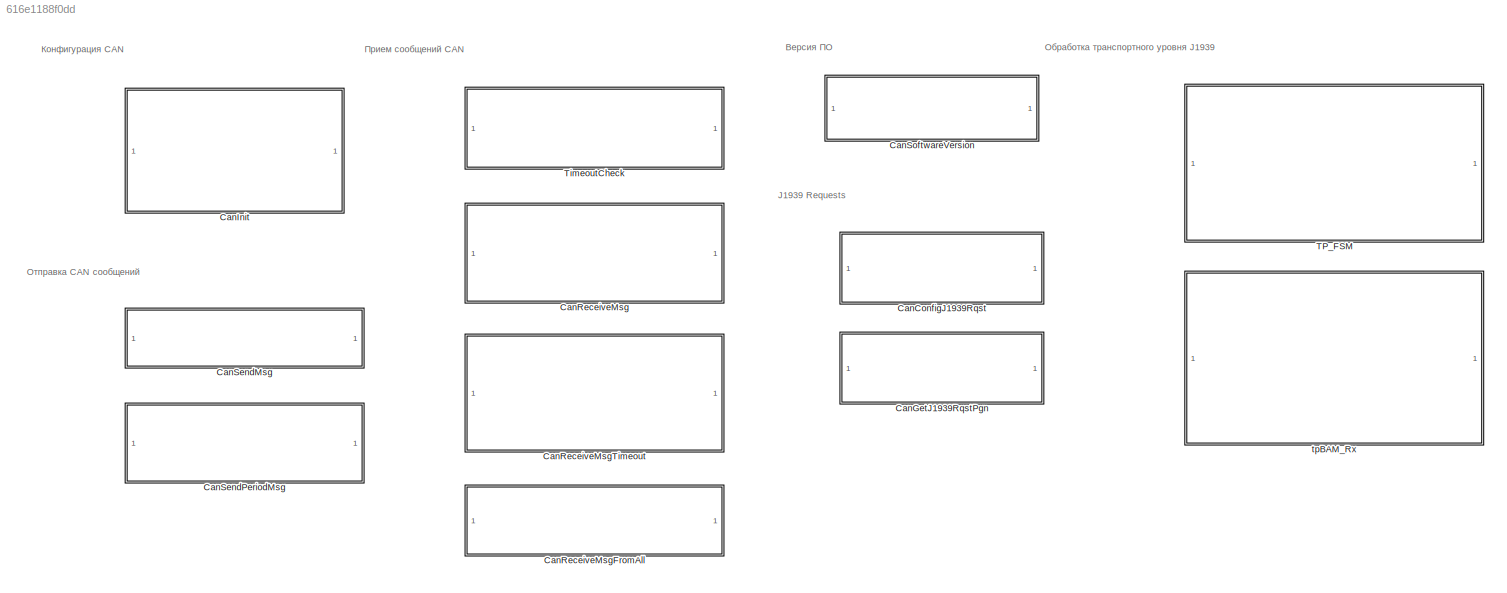
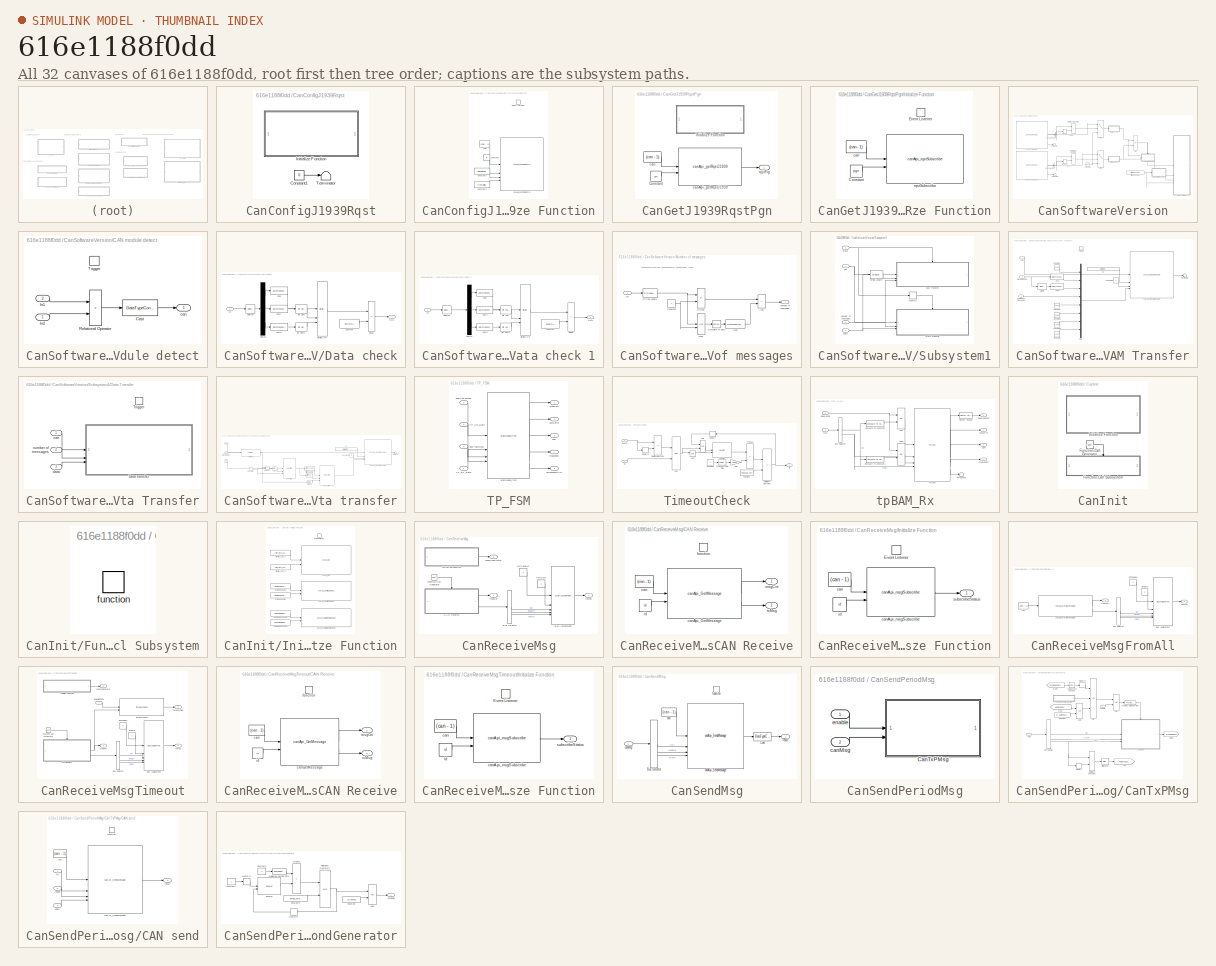
[diagram: thumbnail index - all 32 canvases of the model, root first then tree order]
MODEL slx_616e1188f0dd
KIND library
CONFIG AbsTol = auto
CONFIG EnableMultiTasking = off
CONFIG FixedStep = auto
CONFIG MaxStep = auto
CONFIG MinStep = auto
CONFIG RelTol = 1e-3
CONFIG SampleTimeConstraint = Unconstrained
CONFIG SolverName = VariableStepAuto
CONFIG StartTime = 0.0
CONFIG StopTime = 10.0
BLOCK [SubSystem] CanConfigJ1939Rqst
  TreatAsAtomicUnit = on
BLOCK [Constant] CanConfigJ1939Rqst/Constant1
  Value = 0
BLOCK [SubSystem] CanConfigJ1939Rqst/Initialize Function
  TreatAsAtomicUnit = on
BLOCK [Constant] CanConfigJ1939Rqst/Initialize Function/Constant
  OutDataTypeStr = uint32
  Value = id
BLOCK [Constant] CanConfigJ1939Rqst/Initialize Function/Constant1
  OutDataTypeStr = boolean
  Value = onlyPgnFlg
BLOCK [Constant] CanConfigJ1939Rqst/Initialize Function/Constant2
  OutDataTypeStr = boolean
  Value = fromAllFlg
BLOCK [EventListener] CanConfigJ1939Rqst/Initialize Function/Event Listener
  DisableCoverage = on
  EventName = reset
BLOCK [Constant] CanConfigJ1939Rqst/Initialize Function/can
  OutDataTypeStr = int32
  Value = (can - 1)
BLOCK [Reference] CanConfigJ1939Rqst/Initialize Function/canApi_confiqRqstId  REF=can_bswapi/canApi_confiqRqstId
  SourceBlock = can_bswapi/canApi_confiqRqstId
  SourceType = CCaller
BLOCK [Terminator] CanConfigJ1939Rqst/Terminator
BLOCK [SubSystem] CanGetJ1939RqstPgn
  TreatAsAtomicUnit = on
BLOCK [Constant] CanGetJ1939RqstPgn/Constant
  OutDataTypeStr = uint32
  Value = pgn
BLOCK [SubSystem] CanGetJ1939RqstPgn/Initialize Function
  TreatAsAtomicUnit = on
BLOCK [Constant] CanGetJ1939RqstPgn/Initialize Function/Constant
  OutDataTypeStr = uint32
  Value = pgn
BLOCK [EventListener] CanGetJ1939RqstPgn/Initialize Function/Event Listener
  DisableCoverage = on
  EventName = reset
BLOCK [Constant] CanGetJ1939RqstPgn/Initialize Function/can
  OutDataTypeStr = int32
  Value = (can - 1)
BLOCK [Reference] CanGetJ1939RqstPgn/Initialize Function/rqstSubscribe  REF=can_bswapi/canApi_rqstSubscribe
  SourceBlock = can_bswapi/canApi_rqstSubscribe
  SourceType = CCaller
BLOCK [Constant] CanGetJ1939RqstPgn/can
  OutDataTypeStr = int32
  Value = (can - 1)
BLOCK [Reference] CanGetJ1939RqstPgn/canApi_getRqstJ1939  REF=can_bswapi/canApi_getRqstJ1939
  SourceBlock = can_bswapi/canApi_getRqstJ1939
  SourceType = CCaller
BLOCK [Outport] CanGetJ1939RqstPgn/rqstFlg
  OutDataTypeStr = uint32
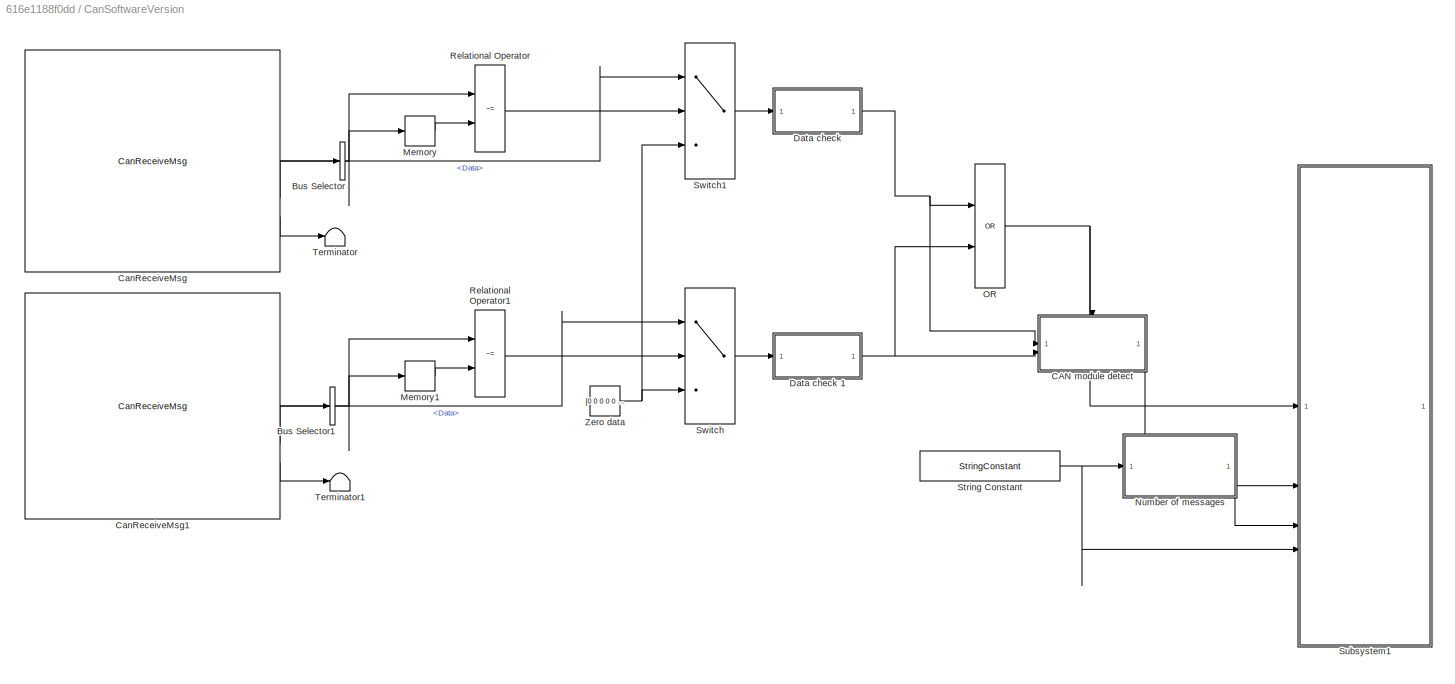
BLOCK [SubSystem] CanSoftwareVersion
  CopyFcn = null_str = """00.00.00""";\nread_str = get_param(gcb, 'firmware_date');\n\nif (read_str == null_str)\n    write_str = """" + string(datetime('now', 'Format', 'dd.MM.yy')) + """";\n    set_param(gcb, 'firmware_date', write_str);\nend\n\nclear null_str read_str write_str;
  LoadFcn = null_str = """00.00.00""";\nread_str = get_param(gcb, 'firmware_date');\n\nif (read_str == null_str)\n    write_str = """" + string(datetime('now', 'Format', 'dd.MM.yy')) + """";\n    set_param(gcb, 'firmware_date', write_str);\nend\n\nupdate = get_param(gcb, 'date_update');\n\nswitch (update)\n    case 'on'\n        write_str = """" + string(datetime('now', 'Format', 'dd.MM.yy')) + """";\n        set_param(gc...<+116ch>
  MoveFcn = null_str = """00.00.00""";\nread_str = get_param(gcb, 'firmware_date');\n\nif (read_str == null_str)\n    write_str = """" + string(datetime('now', 'Format', 'dd.MM.yy')) + """";\n    set_param(gcb, 'firmware_date', write_str);\nend\n\nclear null_str read_str write_str;
  TreatAsAtomicUnit = on
BLOCK [BusSelector] CanSoftwareVersion/Bus Selector
  OutputSignals = Data
BLOCK [BusSelector] CanSoftwareVersion/Bus Selector1
  OutputSignals = Data
BLOCK [SubSystem] CanSoftwareVersion/CAN module detect
  TreatAsAtomicUnit = on
BLOCK [DataTypeConversion] CanSoftwareVersion/CAN module detect/Cast
  OutDataTypeStr = int32
  RndMeth = Simplest
  SaturateOnIntegerOverflow = off
BLOCK [Inport] CanSoftwareVersion/CAN module detect/In1
  Port = 2
BLOCK [Inport] CanSoftwareVersion/CAN module detect/In2
BLOCK [RelationalOperator] CanSoftwareVersion/CAN module detect/Relational Operator
  InputSameDT = off
  Operator = >
  OutDataTypeStr = boolean
  RndMeth = Simplest
  ZeroCross = off
BLOCK [TriggerPort] CanSoftwareVersion/CAN module detect/Trigger
  StatesWhenEnabling = held
  VariantControl = (inherit)
BLOCK [Outport] CanSoftwareVersion/CAN module detect/can
BLOCK [SubSystem] CanSoftwareVersion/Data check
BLOCK [SubSystem] CanSoftwareVersion/Data check 1
BLOCK [Reference] CanSoftwareVersion/Data check 1/Bit Shift  REF=hdlsllib/Logic and Bit
Operations/Bit Shift
  SourceBlock = hdlsllib/Logic and Bit\nOperations/Bit Shift
  SourceType = Bit Shift
BLOCK [Reference] CanSoftwareVersion/Data check 1/Bit Shift1  REF=hdlsllib/Logic and Bit
Operations/Bit Shift
  SourceBlock = hdlsllib/Logic and Bit\nOperations/Bit Shift
  SourceType = Bit Shift
BLOCK [Reference] CanSoftwareVersion/Data check 1/Bitwise OR  REF=simulink/Logic and Bit
Operations/Bitwise
Operator
  LibrarySourceBlock = simulink/Quick Insert/Logic and Bit\nOperations/Bitwise OR
  SourceBlock = simulink/Logic and Bit\nOperations/Bitwise\nOperator
  SourceType = Bitwise Operator
BLOCK [DataTypeConversion] CanSoftwareVersion/Data check 1/Cast
  ConvertRealWorld = Stored Integer (SI)
  OutDataTypeStr = uint32
  RndMeth = Simplest
  SaturateOnIntegerOverflow = off
BLOCK [DataTypeConversion] CanSoftwareVersion/Data check 1/Cast1
  ConvertRealWorld = Stored Integer (SI)
  OutDataTypeStr = uint32
  RndMeth = Simplest
  SaturateOnIntegerOverflow = off
BLOCK [DataTypeConversion] CanSoftwareVersion/Data check 1/Cast2
  ConvertRealWorld = Stored Integer (SI)
  OutDataTypeStr = uint32
  RndMeth = Simplest
  SaturateOnIntegerOverflow = off
BLOCK [Constant] CanSoftwareVersion/Data check 1/Constant
  OutDataTypeStr = uint32
  Value = 0xFEDA
BLOCK [Demux] CanSoftwareVersion/Data check 1/Demux
  Outputs = 3
BLOCK [RelationalOperator] CanSoftwareVersion/Data check 1/Equal
  InputSameDT = off
  Operator = ==
  OutDataTypeStr = boolean
  RndMeth = Simplest
BLOCK [Inport] CanSoftwareVersion/Data check 1/In1
BLOCK [Outport] CanSoftwareVersion/Data check 1/Out1
BLOCK [Selector] CanSoftwareVersion/Data check 1/Selector
  IndexMode = Zero-based
  IndexOptions = Index vector (dialog)
  Indices = [0 1 2]
  InputPortWidth = 8
  OutputSizes = 1
BLOCK [Reference] CanSoftwareVersion/Data check/Bit Shift  REF=hdlsllib/Logic and Bit
Operations/Bit Shift
  SourceBlock = hdlsllib/Logic and Bit\nOperations/Bit Shift
  SourceType = Bit Shift
BLOCK [Reference] CanSoftwareVersion/Data check/Bit Shift1  REF=hdlsllib/Logic and Bit
Operations/Bit Shift
  SourceBlock = hdlsllib/Logic and Bit\nOperations/Bit Shift
  SourceType = Bit Shift
BLOCK [Reference] CanSoftwareVersion/Data check/Bitwise OR  REF=simulink/Logic and Bit
Operations/Bitwise
Operator
  LibrarySourceBlock = simulink/Quick Insert/Logic and Bit\nOperations/Bitwise OR
  SourceBlock = simulink/Logic and Bit\nOperations/Bitwise\nOperator
  SourceType = Bitwise Operator
BLOCK [DataTypeConversion] CanSoftwareVersion/Data check/Cast
  ConvertRealWorld = Stored Integer (SI)
  OutDataTypeStr = uint32
  RndMeth = Simplest
  SaturateOnIntegerOverflow = off
BLOCK [DataTypeConversion] CanSoftwareVersion/Data check/Cast1
  ConvertRealWorld = Stored Integer (SI)
  OutDataTypeStr = uint32
  RndMeth = Simplest
  SaturateOnIntegerOverflow = off
BLOCK [DataTypeConversion] CanSoftwareVersion/Data check/Cast2
  ConvertRealWorld = Stored Integer (SI)
  OutDataTypeStr = uint32
  RndMeth = Simplest
  SaturateOnIntegerOverflow = off
BLOCK [Constant] CanSoftwareVersion/Data check/Constant
  OutDataTypeStr = uint32
  Value = 0xFEDA
BLOCK [Demux] CanSoftwareVersion/Data check/Demux
  Outputs = 3
BLOCK [RelationalOperator] CanSoftwareVersion/Data check/Equal
  InputSameDT = off
  Operator = ==
  OutDataTypeStr = boolean
  RndMeth = Simplest
BLOCK [Inport] CanSoftwareVersion/Data check/In1
BLOCK [Outport] CanSoftwareVersion/Data check/Out1
BLOCK [Selector] CanSoftwareVersion/Data check/Selector
  IndexMode = Zero-based
  IndexOptions = Index vector (dialog)
  Indices = [0 1 2]
  InputPortWidth = 8
  OutputSizes = 1
BLOCK [Memory] CanSoftwareVersion/Memory
BLOCK [Memory] CanSoftwareVersion/Memory1
BLOCK [SubSystem] CanSoftwareVersion/Number of messages
BLOCK [Sum] CanSoftwareVersion/Number of messages/Add
  IconShape = rectangular
  OutDataTypeStr = uint8
  RndMeth = Simplest
BLOCK [DataTypeConversion] CanSoftwareVersion/Number of messages/Cast
  OutDataTypeStr = uint8
  RndMeth = Simplest
  SaturateOnIntegerOverflow = off
BLOCK [Reference] CanSoftwareVersion/Number of messages/Compare To Zero  REF=simulink/Logic and Bit
Operations/Compare
To Zero
  SourceBlock = simulink/Logic and Bit\nOperations/Compare\nTo Zero
  SourceType = Compare To Zero
BLOCK [Constant] CanSoftwareVersion/Number of messages/Constant
  OutDataTypeStr = uint8
  Value = 7
BLOCK [Product] CanSoftwareVersion/Number of messages/Divide
  Inputs = */
  OutDataTypeStr = uint8
  RndMeth = Simplest
BLOCK [Inport] CanSoftwareVersion/Number of messages/In1
BLOCK [Math] CanSoftwareVersion/Number of messages/Mod
  Operator = mod
BLOCK [StringLength] CanSoftwareVersion/Number of messages/String Length
  OutDataTypeStr = uint8
BLOCK [Outport] CanSoftwareVersion/Number of messages/number of messages
BLOCK [Logic] CanSoftwareVersion/OR
  AllPortsSameDT = off
  Operator = OR
  OutDataTypeStr = boolean
BLOCK [RelationalOperator] CanSoftwareVersion/Relational Operator
  InputSameDT = off
  Operator = ~=
  OutDataTypeStr = boolean
  RndMeth = Simplest
BLOCK [RelationalOperator] CanSoftwareVersion/Relational Operator1
  InputSameDT = off
  Operator = ~=
  OutDataTypeStr = boolean
  RndMeth = Simplest
BLOCK [StringConstant] CanSoftwareVersion/String Constant
  String = software_version
BLOCK [SubSystem] CanSoftwareVersion/Subsystem1
BLOCK [SubSystem] CanSoftwareVersion/Subsystem1/BAM Transfer
  TreatAsAtomicUnit = on
BLOCK [Reference] CanSoftwareVersion/Subsystem1/BAM Transfer/Bit Shift  REF=hdlsllib/Logic and Bit
Operations/Bit Shift
  SourceBlock = hdlsllib/Logic and Bit\nOperations/Bit Shift
  SourceType = Bit Shift
BLOCK [DataTypeConversion] CanSoftwareVersion/Subsystem1/BAM Transfer/Cast
  OutDataTypeStr = uint8
  RndMeth = Simplest
  SaturateOnIntegerOverflow = off
BLOCK [DataTypeConversion] CanSoftwareVersion/Subsystem1/BAM Transfer/Cast1
  OutDataTypeStr = uint8
  RndMeth = Simplest
  SaturateOnIntegerOverflow = off
BLOCK [Constant] CanSoftwareVersion/Subsystem1/BAM Transfer/Constant
  OutDataTypeStr = uint8
  Value = 0x20
BLOCK [Constant] CanSoftwareVersion/Subsystem1/BAM Transfer/Constant1
  OutDataTypeStr = uint8
  Value = 0xFF
BLOCK [Constant] CanSoftwareVersion/Subsystem1/BAM Transfer/Constant2
  OutDataTypeStr = uint8
  Value = 0xDA
BLOCK [Constant] CanSoftwareVersion/Subsystem1/BAM Transfer/Constant3
  OutDataTypeStr = uint8
  Value = 0xFE
BLOCK [Constant] CanSoftwareVersion/Subsystem1/BAM Transfer/Constant4
  OutDataTypeStr = uint8
  Value = 0x00
BLOCK [Constant] CanSoftwareVersion/Subsystem1/BAM Transfer/Constant8
  OutDataTypeStr = uint8
  Value = 8
BLOCK [Constant] CanSoftwareVersion/Subsystem1/BAM Transfer/ID
  OutDataTypeStr = uint32
  Value = bitor(uint32(0x1CECFF00), uint32(sa))
BLOCK [Mux] CanSoftwareVersion/Subsystem1/BAM Transfer/Mux
  DisplayOption = bar
  Inputs = 8
BLOCK [Terminator] CanSoftwareVersion/Subsystem1/BAM Transfer/Terminator
BLOCK [TriggerPort] CanSoftwareVersion/Subsystem1/BAM Transfer/Trigger
  StatesWhenEnabling = held
  VariantControl = (inherit)
BLOCK [Inport] CanSoftwareVersion/Subsystem1/BAM Transfer/can
BLOCK [Reference] CanSoftwareVersion/Subsystem1/BAM Transfer/canApi_SendMessage  REF=can_bswapi/canApi_SendMessage
  SourceBlock = can_bswapi/canApi_SendMessage
  SourceType = CCaller
BLOCK [Inport] CanSoftwareVersion/Subsystem1/BAM Transfer/message size
  Port = 2
BLOCK [Inport] CanSoftwareVersion/Subsystem1/BAM Transfer/number of messages
  Port = 3
BLOCK [SubSystem] CanSoftwareVersion/Subsystem1/Data Transfer
  TreatAsAtomicUnit = on
BLOCK [SubSystem] CanSoftwareVersion/Subsystem1/Data Transfer/Data transfer
  TreatAsAtomicUnit = on
BLOCK [Bias] CanSoftwareVersion/Subsystem1/Data Transfer/Data transfer/Bias
  Bias = 1
  SaturateOnIntegerOverflow = off
BLOCK [Bias] CanSoftwareVersion/Subsystem1/Data Transfer/Data transfer/Bias1
  Bias = 1
  SaturateOnIntegerOverflow = off
BLOCK [CFunction] CanSoftwareVersion/Subsystem1/Data Transfer/Data transfer/C Function
  OutputCode = if(len < 7)\n{\n    data_out[0] = message_number;\n    for(int i = 0; i < 7; ++i)\n    {\n        if(i < len)\n            data_out[i + 1] = data_in[i];\n        else\n            data_out[i + 1] = 0xFF;\n    }    \n}\nelse\n{\n    data_out[0] = message_number;\n    for(int i = 0; i < 7; ++i)\n    {\n        data_out[i + 1] = data_in[i];    \n    }   \n}
BLOCK [Constant] CanSoftwareVersion/Subsystem1/Data Transfer/Data transfer/Constant
  OutDataTypeStr = uint8
  Value = 7
BLOCK [Constant] CanSoftwareVersion/Subsystem1/Data Transfer/Data transfer/Constant8
  OutDataTypeStr = uint8
  Value = 8
BLOCK [ForIterator] CanSoftwareVersion/Subsystem1/Data Transfer/Data transfer/For Iterator
  IndexMode = Zero-based
  IterationSource = external
  IterationVariableDataType = uint8
BLOCK [Constant] CanSoftwareVersion/Subsystem1/Data Transfer/Data transfer/ID
  OutDataTypeStr = uint32
  Value = bitor(uint32(0x1CEBFF00), uint32(sa))
BLOCK [Product] CanSoftwareVersion/Subsystem1/Data Transfer/Data transfer/Product
  OutDataTypeStr = uint8
  RndMeth = Simplest
BLOCK [StringLength] CanSoftwareVersion/Subsystem1/Data Transfer/Data transfer/String Length
  OutDataTypeStr = uint32
BLOCK [StringToASCII] CanSoftwareVersion/Subsystem1/Data Transfer/Data transfer/String to ASCII
  OutputVectorSize = 7
BLOCK [Substring] CanSoftwareVersion/Subsystem1/Data Transfer/Data transfer/Substring
BLOCK [Terminator] CanSoftwareVersion/Subsystem1/Data Transfer/Data transfer/Terminator
BLOCK [Inport] CanSoftwareVersion/Subsystem1/Data Transfer/Data transfer/can
BLOCK [Reference] CanSoftwareVersion/Subsystem1/Data Transfer/Data transfer/canApi_SendMessage  REF=can_bswapi/canApi_SendMessage
  SourceBlock = can_bswapi/canApi_SendMessage
  SourceType = CCaller
BLOCK [Inport] CanSoftwareVersion/Subsystem1/Data Transfer/Data transfer/data
  Port = 3
BLOCK [Inport] CanSoftwareVersion/Subsystem1/Data Transfer/Data transfer/number of messages
  Port = 2
BLOCK [TriggerPort] CanSoftwareVersion/Subsystem1/Data Transfer/Trigger
  StatesWhenEnabling = held
  VariantControl = (inherit)
BLOCK [Inport] CanSoftwareVersion/Subsystem1/Data Transfer/can
BLOCK [Inport] CanSoftwareVersion/Subsystem1/Data Transfer/data
  Port = 3
BLOCK [Inport] CanSoftwareVersion/Subsystem1/Data Transfer/number of messages
  Port = 2
BLOCK [Memory] CanSoftwareVersion/Subsystem1/Memory
BLOCK [StringLength] CanSoftwareVersion/Subsystem1/String Length
  OutDataTypeStr = uint8
BLOCK [Inport] CanSoftwareVersion/Subsystem1/can
  Port = 2
BLOCK [Inport] CanSoftwareVersion/Subsystem1/data
  Port = 4
BLOCK [Inport] CanSoftwareVersion/Subsystem1/number of messages
  Port = 3
BLOCK [Inport] CanSoftwareVersion/Subsystem1/state
BLOCK [Switch] CanSoftwareVersion/Switch
  Criteria = u2 ~= 0
  InputSameDT = off
  RndMeth = Simplest
  SaturateOnIntegerOverflow = off
BLOCK [Switch] CanSoftwareVersion/Switch1
  Criteria = u2 ~= 0
  InputSameDT = off
  RndMeth = Simplest
  SaturateOnIntegerOverflow = off
BLOCK [Terminator] CanSoftwareVersion/Terminator
BLOCK [Terminator] CanSoftwareVersion/Terminator1
BLOCK [Constant] CanSoftwareVersion/Zero data
  OutDataTypeStr = uint8
  Value = [0 0 0 0 0 0 0 0]
BLOCK [Reference] CanSoftwareVersion/СanReceiveMsg  REF=$bdroot/СanReceiveMsg
  SourceBlock = $bdroot/СanReceiveMsg
  SourceType = Прием Can-сообщения по "подписке"
BLOCK [Reference] CanSoftwareVersion/СanReceiveMsg1  REF=$bdroot/СanReceiveMsg
  SourceBlock = $bdroot/СanReceiveMsg
  SourceType = Прием Can-сообщения по "подписке"
BLOCK [SubSystem] TP_FSM
BLOCK [Reference] TP_FSM/BamJ1939_Fsm  REF=bamFsm/BamJ1939_Fsm
  SourceBlock = bamFsm/BamJ1939_Fsm
  SourceType = SubSystem
BLOCK [Inport] TP_FSM/TP_CM_Data
  Port = 2
BLOCK [Inport] TP_FSM/TP_DT_Data
  Port = 4
BLOCK [Outport] TP_FSM/dtMsgWaitFlg
  OutDataTypeStr = boolean
  Port = 5
BLOCK [Outport] TP_FSM/msgCntr
BLOCK [Outport] TP_FSM/msgLengh
  Port = 4
BLOCK [Inport] TP_FSM/newTpCmMsg
BLOCK [Inport] TP_FSM/newTpDtMsg
  Port = 3
BLOCK [Outport] TP_FSM/outBuffer
  Port = 2
BLOCK [Outport] TP_FSM/pgn
  Port = 3
BLOCK [SubSystem] TimeoutCheck
BLOCK [Logic] TimeoutCheck/AND
  AllPortsSameDT = off
  OutDataTypeStr = boolean
BLOCK [Constant] TimeoutCheck/Constant
  OutDataTypeStr = uint32
  Value = timeout_ms
BLOCK [Constant] TimeoutCheck/Constant2
  OutDataTypeStr = uint32
BLOCK [Reference] TimeoutCheck/Counter  REF=dspswit3/Counter
  SourceBlock = dspswit3/Counter
  SourceType = Counter
BLOCK [Gain] TimeoutCheck/Gain
  Gain = 1000
  OutDataTypeStr = uint32
  ParamDataTypeStr = single
  RndMeth = Simplest
BLOCK [Memory] TimeoutCheck/Memory
  InheritSampleTime = on
  NameLocation = top
BLOCK [Memory] TimeoutCheck/Memory1
  InheritSampleTime = on
BLOCK [Logic] TimeoutCheck/NOT
  AllPortsSameDT = off
  IconShape = distinctive
  Operator = NOT
  OutDataTypeStr = boolean
BLOCK [Product] TimeoutCheck/Product
  OutDataTypeStr = uint32
  RndMeth = Simplest
BLOCK [RelationalOperator] TimeoutCheck/Relational Operator
  InputSameDT = off
  Operator = ==
  OutDataTypeStr = boolean
  RndMeth = Simplest
  ZeroCross = off
BLOCK [RelationalOperator] TimeoutCheck/Relational Operator1
  InputSameDT = off
  Operator = >
  OutDataTypeStr = boolean
  RndMeth = Simplest
  ZeroCross = off
BLOCK [SampleTimeMath] TimeoutCheck/Weighted Sample Time
  OutDataTypeStr = single
  TsampMathOp = Ts Only
  weightValue = uint32(1)
BLOCK [Logic] TimeoutCheck/XOR
  AllPortsSameDT = off
  Operator = XOR
  OutDataTypeStr = boolean
BLOCK [Inport] TimeoutCheck/en
BLOCK [Outport] TimeoutCheck/flg
BLOCK [Inport] TimeoutCheck/msgCnt
  Port = 2
BLOCK [SubSystem] tpBAM_Rx
BLOCK [Logic] tpBAM_Rx/AND
  AllPortsSameDT = off
  OutDataTypeStr = boolean
BLOCK [Logic] tpBAM_Rx/AND1
  AllPortsSameDT = off
  OutDataTypeStr = boolean
BLOCK [BusSelector] tpBAM_Rx/Bus Selector
  OutputSignals = ID,Data
BLOCK [Reference] tpBAM_Rx/Compare To Constant  REF=simulink/Logic and Bit
Operations/Compare
To Constant
  SourceBlock = simulink/Logic and Bit\nOperations/Compare\nTo Constant
  SourceType = Compare To Constant
BLOCK [Reference] tpBAM_Rx/Compare To Constant1  REF=simulink/Logic and Bit
Operations/Compare
To Constant
  SourceBlock = simulink/Logic and Bit\nOperations/Compare\nTo Constant
  SourceType = Compare To Constant
BLOCK [Reference] tpBAM_Rx/Detect Change  REF=simulink/Logic and Bit
Operations/Detect
Change
  SourceBlock = simulink/Logic and Bit\nOperations/Detect\nChange
  SourceType = Detect Change
BLOCK [Inport] tpBAM_Rx/Msg
  OutDataTypeStr = Bus: CAN_MESSAGE_BUS
  Port = 2
BLOCK [Outport] tpBAM_Rx/NewMsgEvent
BLOCK [Inport] tpBAM_Rx/NewMsgFlg
  OutDataTypeStr = boolean
BLOCK [Reference] tpBAM_Rx/TP_FSM  REF=$bdroot/TP_FSM
  SourceBlock = $bdroot/TP_FSM
  SourceType = J1939 TP Msg Rx Fsm
BLOCK [Terminator] tpBAM_Rx/Terminator
BLOCK [Outport] tpBAM_Rx/msgLenght
  Port = 4
BLOCK [Outport] tpBAM_Rx/outBuffer
  Port = 3
BLOCK [Outport] tpBAM_Rx/pgn
  Port = 2
BLOCK [SubSystem] СanInit
  TreatAsAtomicUnit = on
BLOCK [Reference] СanInit/Function-Call Generator  REF=simulink/Ports &
Subsystems/Function-Call
Generator
  SourceBlock = simulink/Ports &\nSubsystems/Function-Call\nGenerator
  SourceType = Function-Call Generator
BLOCK [SubSystem] СanInit/Function-Call Subsystem
  TreatAsAtomicUnit = on
BLOCK [TriggerPort] СanInit/Function-Call Subsystem/function
  StatesWhenEnabling = held
  TriggerType = function-call
  VariantControl = (inherit)
BLOCK [SubSystem] СanInit/Initialize Function
  TreatAsAtomicUnit = on
BLOCK [EventListener] СanInit/Initialize Function/Event Listener
  DisableCoverage = on
  EventName = reset
BLOCK [Constant] СanInit/Initialize Function/bitrate_can_1
  OutDataTypeStr = int32
  Value = (bitrate_can_1)
BLOCK [Constant] СanInit/Initialize Function/bitrate_can_2
  OutDataTypeStr = int32
  Value = (bitrate_can_2)
BLOCK [Constant] СanInit/Initialize Function/bootBrigdeCan1to2
  OutDataTypeStr = boolean
  Value = bootBrigdeCan1to2Flg
BLOCK [Constant] СanInit/Initialize Function/bootBrigdeCan2to1
  OutDataTypeStr = boolean
  Value = bootBrigdeCan2to1Flg
BLOCK [Constant] СanInit/Initialize Function/brigdeCan1to2
  OutDataTypeStr = boolean
  Value = brigdeCan1to2Flg
BLOCK [Constant] СanInit/Initialize Function/brigdeCan2to1
  OutDataTypeStr = boolean
  Value = brigdeCan2to1Flg
BLOCK [Reference] СanInit/Initialize Function/canApi_ConfigBootBridges  REF=can_bswapi/canApi_ConfigBootBridges
  SourceBlock = can_bswapi/canApi_ConfigBootBridges
  SourceType = CCaller
BLOCK [Reference] СanInit/Initialize Function/canApi_ConfigBridges  REF=can_bswapi/canApi_ConfigBridges
  SourceBlock = can_bswapi/canApi_ConfigBridges
  SourceType = CCaller
BLOCK [Reference] СanInit/Initialize Function/canApi_Init  REF=can_bswapi/canApi_Init
  SourceBlock = can_bswapi/canApi_Init
  SourceType = CCaller
BLOCK [SubSystem] СanReceiveMsg
  TreatAsAtomicUnit = on
BLOCK [BusAssignment] СanReceiveMsg/Bus Assignment
  AssignedSignals = Extended,ID,Length,Data
BLOCK [BusSelector] СanReceiveMsg/Bus Selector
  OutputSignals = id,length,data
BLOCK [SubSystem] СanReceiveMsg/CAN Receive
  TreatAsAtomicUnit = on
BLOCK [Constant] СanReceiveMsg/CAN Receive/can
  OutDataTypeStr = int32
  Value = (can - 1)
BLOCK [Reference] СanReceiveMsg/CAN Receive/canApi_GetMessage  REF=can_bswapi/canApi_GetMessage
  SourceBlock = can_bswapi/canApi_GetMessage
  SourceType = CCaller
BLOCK [TriggerPort] СanReceiveMsg/CAN Receive/function
  StatesWhenEnabling = held
  TriggerType = function-call
  VariantControl = (inherit)
BLOCK [Constant] СanReceiveMsg/CAN Receive/id
  OutDataTypeStr = uint32
  Value = id
BLOCK [Outport] СanReceiveMsg/CAN Receive/msgCnt
BLOCK [Outport] СanReceiveMsg/CAN Receive/rxMsg
  Port = 2
BLOCK [Reference] СanReceiveMsg/Function-Call Generator  REF=simulink/Ports &
Subsystems/Function-Call
Generator
  SourceBlock = simulink/Ports &\nSubsystems/Function-Call\nGenerator
  SourceType = Function-Call Generator
BLOCK [SubSystem] СanReceiveMsg/Initialize Function
  TreatAsAtomicUnit = on
BLOCK [EventListener] СanReceiveMsg/Initialize Function/Event Listener
  DisableCoverage = on
  EventName = reset
BLOCK [Constant] СanReceiveMsg/Initialize Function/can
  OutDataTypeStr = int32
  Value = (can - 1)
BLOCK [Reference] СanReceiveMsg/Initialize Function/canApi_msgSubscribe  REF=can_bswapi/canApi_msgSubscribe
  SourceBlock = can_bswapi/canApi_msgSubscribe
  SourceType = CCaller
BLOCK [Constant] СanReceiveMsg/Initialize Function/id
  OutDataTypeStr = uint32
  Value = id
BLOCK [Outport] СanReceiveMsg/Initialize Function/subscribeStatus
BLOCK [Constant] СanReceiveMsg/initCanBus
  OutDataTypeStr = Bus: CAN_MESSAGE_BUS
  Value = 0
BLOCK [Constant] СanReceiveMsg/initExtd
  OutDataTypeStr = uint8
BLOCK [Outport] СanReceiveMsg/msgCnt
BLOCK [Outport] СanReceiveMsg/rxMsg
  OutDataTypeStr = Bus: CAN_MESSAGE_BUS
  Port = 2
BLOCK [Outport] СanReceiveMsg/subscribeStatus
  Port = 3
BLOCK [SubSystem] СanReceiveMsgFromAll
  TreatAsAtomicUnit = on
BLOCK [BusAssignment] СanReceiveMsgFromAll/Bus Assignment
  AssignedSignals = Extended,ID,Length,Data
BLOCK [BusSelector] СanReceiveMsgFromAll/Bus Selector
  OutputSignals = id,length,data
BLOCK [Outport] СanReceiveMsgFromAll/IsEmpty
BLOCK [Outport] СanReceiveMsgFromAll/RxMsg
  OutDataTypeStr = Bus: CAN_MESSAGE_BUS
  Port = 2
BLOCK [Constant] СanReceiveMsgFromAll/can
  OutDataTypeStr = int32
  Value = (can - 1)
BLOCK [Reference] СanReceiveMsgFromAll/canApi_GetAllMessages  REF=can_bswapi/canApi_GetAllMessages
  SourceBlock = can_bswapi/canApi_GetAllMessages
  SourceType = CCaller
BLOCK [Constant] СanReceiveMsgFromAll/initCanBus
  OutDataTypeStr = Bus: CAN_MESSAGE_BUS
  Value = 0
BLOCK [Constant] СanReceiveMsgFromAll/initExtd
  OutDataTypeStr = uint8
BLOCK [SubSystem] СanReceiveMsgTimeout
  TreatAsAtomicUnit = on
BLOCK [BusAssignment] СanReceiveMsgTimeout/Bus Assignment
  AssignedSignals = Extended,ID,Length,Data
BLOCK [BusSelector] СanReceiveMsgTimeout/Bus Selector
  OutputSignals = id,length,data
BLOCK [SubSystem] СanReceiveMsgTimeout/CAN Receive
  TreatAsAtomicUnit = on
BLOCK [Constant] СanReceiveMsgTimeout/CAN Receive/can
  OutDataTypeStr = int32
  Value = (can - 1)
BLOCK [Reference] СanReceiveMsgTimeout/CAN Receive/canGetMessage  REF=can_bswapi/canApi_GetMessage
  SourceBlock = can_bswapi/canApi_GetMessage
  SourceType = CCaller
BLOCK [TriggerPort] СanReceiveMsgTimeout/CAN Receive/function
  StatesWhenEnabling = held
  TriggerType = function-call
  VariantControl = (inherit)
BLOCK [Constant] СanReceiveMsgTimeout/CAN Receive/id
  OutDataTypeStr = uint32
  Value = id
BLOCK [Outport] СanReceiveMsgTimeout/CAN Receive/msgCnt
BLOCK [Outport] СanReceiveMsgTimeout/CAN Receive/rxMsg
  Port = 2
BLOCK [Reference] СanReceiveMsgTimeout/Function-Call Generator  REF=simulink/Ports &
Subsystems/Function-Call
Generator
  SourceBlock = simulink/Ports &\nSubsystems/Function-Call\nGenerator
  SourceType = Function-Call Generator
BLOCK [SubSystem] СanReceiveMsgTimeout/Initialize Function
  TreatAsAtomicUnit = on
BLOCK [EventListener] СanReceiveMsgTimeout/Initialize Function/Event Listener
  DisableCoverage = on
  EventName = reset
BLOCK [Constant] СanReceiveMsgTimeout/Initialize Function/can
  OutDataTypeStr = int32
  Value = (can - 1)
BLOCK [Reference] СanReceiveMsgTimeout/Initialize Function/canApi_msgSubscribe  REF=can_bswapi/canApi_msgSubscribe
  SourceBlock = can_bswapi/canApi_msgSubscribe
  SourceType = CCaller
BLOCK [Constant] СanReceiveMsgTimeout/Initialize Function/id
  OutDataTypeStr = uint32
  Value = id
BLOCK [Outport] СanReceiveMsgTimeout/Initialize Function/subscribeStatus
BLOCK [Reference] СanReceiveMsgTimeout/TimeoutCheck  REF=$bdroot/TimeoutCheck
  SourceBlock = $bdroot/TimeoutCheck
  SourceType = Check TimeOut
BLOCK [Inport] СanReceiveMsgTimeout/enableCheck
  OutDataTypeStr = boolean
BLOCK [Constant] СanReceiveMsgTimeout/initCanBus
  OutDataTypeStr = Bus: CAN_MESSAGE_BUS
  Value = 0
BLOCK [Constant] СanReceiveMsgTimeout/initExtd
  OutDataTypeStr = uint8
BLOCK [Outport] СanReceiveMsgTimeout/msgCnt
BLOCK [Outport] СanReceiveMsgTimeout/rxMsg
  OutDataTypeStr = Bus: CAN_MESSAGE_BUS
  Port = 3
BLOCK [Outport] СanReceiveMsgTimeout/subscribeStatus
  Port = 4
BLOCK [Outport] СanReceiveMsgTimeout/timeoutFlag
  Port = 2
BLOCK [SubSystem] СanSendMsg
BLOCK [BusSelector] СanSendMsg/Bus Selector
  OutputSignals = ID,Length,Data
BLOCK [DataTypeConversion] СanSendMsg/Cast
  OutDataTypeStr = Enum: Statuses
  RndMeth = Simplest
  SaturateOnIntegerOverflow = off
BLOCK [Constant] СanSendMsg/can
  OutDataTypeStr = int32
  Value = (can - 1)
BLOCK [Reference] СanSendMsg/canApi_SendMessage  REF=can_bswapi/canApi_SendMessage
  SourceBlock = can_bswapi/canApi_SendMessage
  SourceType = CCaller
BLOCK [Inport] СanSendMsg/canMsg
  OutDataTypeStr = Bus: CAN_MESSAGE_BUS
BLOCK [TriggerPort] СanSendMsg/function
  StatesWhenEnabling = held
  TriggerType = function-call
  VariantControl = (inherit)
BLOCK [Outport] СanSendMsg/result
  OutDataTypeStr = Enum: Statuses
BLOCK [SubSystem] СanSendPeriodMsg
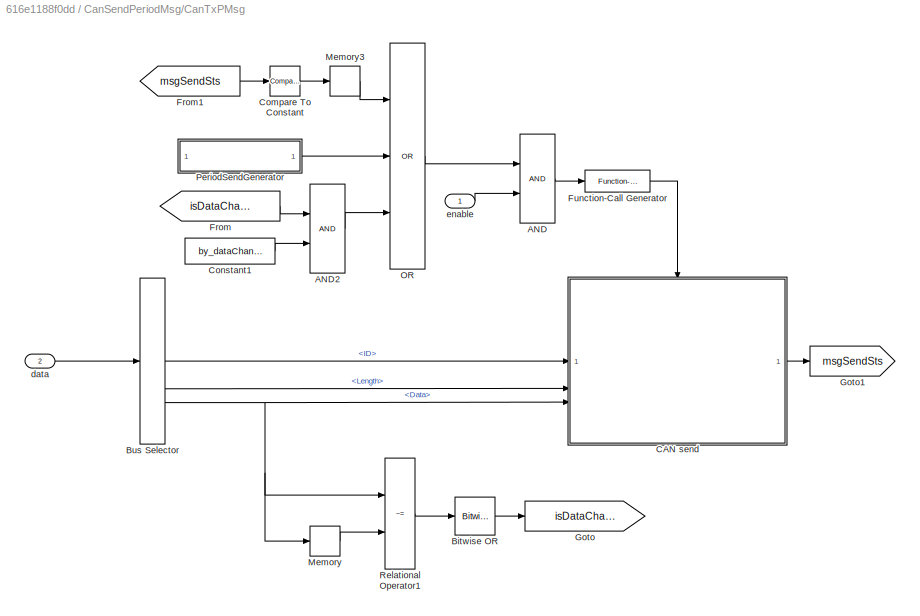
BLOCK [SubSystem] СanSendPeriodMsg/CanTxPMsg
  SystemSampleTime = sample_time
  TreatAsAtomicUnit = on
BLOCK [Logic] СanSendPeriodMsg/CanTxPMsg/AND
  AllPortsSameDT = off
  OutDataTypeStr = boolean
BLOCK [Logic] СanSendPeriodMsg/CanTxPMsg/AND2
  AllPortsSameDT = off
  OutDataTypeStr = boolean
BLOCK [Reference] СanSendPeriodMsg/CanTxPMsg/Bitwise OR  REF=simulink/Logic and Bit
Operations/Bitwise
Operator
  LibrarySourceBlock = simulink/Quick Insert/Logic and Bit\nOperations/Bitwise OR
  SourceBlock = simulink/Logic and Bit\nOperations/Bitwise\nOperator
  SourceType = Bitwise Operator
BLOCK [BusSelector] СanSendPeriodMsg/CanTxPMsg/Bus Selector
  OutputSignals = ID,Length,Data
BLOCK [SubSystem] СanSendPeriodMsg/CanTxPMsg/CAN send
  TreatAsAtomicUnit = on
BLOCK [Constant] СanSendPeriodMsg/CanTxPMsg/CAN send/can
  OutDataTypeStr = int32
  Value = (can - 1)
BLOCK [Reference] СanSendPeriodMsg/CanTxPMsg/CAN send/canApi_SendMessage  REF=can_bswapi/canApi_SendMessage
  SourceBlock = can_bswapi/canApi_SendMessage
  SourceType = CCaller
BLOCK [Inport] СanSendPeriodMsg/CanTxPMsg/CAN send/data
  Port = 3
BLOCK [TriggerPort] СanSendPeriodMsg/CanTxPMsg/CAN send/function
  StatesWhenEnabling = held
  TriggerType = function-call
  VariantControl = (inherit)
BLOCK [Inport] СanSendPeriodMsg/CanTxPMsg/CAN send/id
BLOCK [Inport] СanSendPeriodMsg/CanTxPMsg/CAN send/lenght
  Port = 2
BLOCK [Outport] СanSendPeriodMsg/CanTxPMsg/CAN send/result
BLOCK [Reference] СanSendPeriodMsg/CanTxPMsg/Compare To Constant  REF=simulink/Logic and Bit
Operations/Compare
To Constant
  SourceBlock = simulink/Logic and Bit\nOperations/Compare\nTo Constant
  SourceType = Compare To Constant
BLOCK [Constant] СanSendPeriodMsg/CanTxPMsg/Constant1
  OutDataTypeStr = boolean
  Value = by_dataChange
BLOCK [From] СanSendPeriodMsg/CanTxPMsg/From
  GotoTag = isDataChanged
BLOCK [From] СanSendPeriodMsg/CanTxPMsg/From1
  GotoTag = msgSendSts
BLOCK [Reference] СanSendPeriodMsg/CanTxPMsg/Function-Call Generator  REF=simulink/Ports &
Subsystems/Function-Call
Generator
  SourceBlock = simulink/Ports &\nSubsystems/Function-Call\nGenerator
  SourceType = Function-Call Generator
BLOCK [Goto] СanSendPeriodMsg/CanTxPMsg/Goto
  GotoTag = isDataChanged
BLOCK [Goto] СanSendPeriodMsg/CanTxPMsg/Goto1
  GotoTag = msgSendSts
BLOCK [Memory] СanSendPeriodMsg/CanTxPMsg/Memory
  InheritSampleTime = on
BLOCK [Memory] СanSendPeriodMsg/CanTxPMsg/Memory3
  InheritSampleTime = on
BLOCK [Logic] СanSendPeriodMsg/CanTxPMsg/OR
  AllPortsSameDT = off
  Inputs = 3
  Operator = OR
  OutDataTypeStr = boolean
BLOCK [SubSystem] СanSendPeriodMsg/CanTxPMsg/PeriodSendGenerator
BLOCK [Logic] СanSendPeriodMsg/CanTxPMsg/PeriodSendGenerator/AND1
  AllPortsSameDT = off
  OutDataTypeStr = boolean
BLOCK [Constant] СanSendPeriodMsg/CanTxPMsg/PeriodSendGenerator/Constant
  OutDataTypeStr = boolean
  Value = by_period
BLOCK [Constant] СanSendPeriodMsg/CanTxPMsg/PeriodSendGenerator/Constant2
  OutDataTypeStr = uint32
BLOCK [Constant] СanSendPeriodMsg/CanTxPMsg/PeriodSendGenerator/Constant3
  OutDataTypeStr = uint32
  Value = period_time*1000
BLOCK [Constant] СanSendPeriodMsg/CanTxPMsg/PeriodSendGenerator/Constant4
  OutDataTypeStr = uint32
BLOCK [Reference] СanSendPeriodMsg/CanTxPMsg/PeriodSendGenerator/Counter  REF=dspswit3/Counter
  SourceBlock = dspswit3/Counter
  SourceType = Counter
BLOCK [Memory] СanSendPeriodMsg/CanTxPMsg/PeriodSendGenerator/Memory1
  InheritSampleTime = on
BLOCK [Memory] СanSendPeriodMsg/CanTxPMsg/PeriodSendGenerator/Memory4
  InheritSampleTime = on
  NameLocation = top
BLOCK [Product] СanSendPeriodMsg/CanTxPMsg/PeriodSendGenerator/Product
  OutDataTypeStr = uint32
  RndMeth = Simplest
BLOCK [RelationalOperator] СanSendPeriodMsg/CanTxPMsg/PeriodSendGenerator/Relational Operator3
  InputSameDT = off
  OutDataTypeStr = boolean
  RndMeth = Simplest
  ZeroCross = off
BLOCK [SampleTimeMath] СanSendPeriodMsg/CanTxPMsg/PeriodSendGenerator/Weighted Sample Time
  OutDataTypeStr = single
  TsampMathOp = Ts Only
  weightValue = uint32(1000)
BLOCK [Outport] СanSendPeriodMsg/CanTxPMsg/PeriodSendGenerator/sendFlag
BLOCK [RelationalOperator] СanSendPeriodMsg/CanTxPMsg/Relational Operator1
  InputSameDT = off
  Operator = ~=
  OutDataTypeStr = boolean
  RndMeth = Simplest
BLOCK [Inport] СanSendPeriodMsg/CanTxPMsg/data
  Port = 2
BLOCK [Inport] СanSendPeriodMsg/CanTxPMsg/enable
  OutDataTypeStr = boolean
BLOCK [Inport] СanSendPeriodMsg/canMsg
  OutDataTypeStr = Bus: CAN_MESSAGE_BUS
  Port = 2
BLOCK [Inport] СanSendPeriodMsg/enable
  OutDataTypeStr = boolean
ANNOTATION (root): J1939 Requests
ANNOTATION (root): Версия ПО
ANNOTATION (root): Конфигурация CAN
ANNOTATION (root): Обработка транспортного уровня J1939
ANNOTATION (root): Отправка CAN сообщений
ANNOTATION (root): Прием сообщений CAN
ANNOTATION CanSoftwareVersion/Number of messages: Количество посылок транспортным протоколом j1939
LINE CanConfigJ1939Rqst/Constant1:1 -> CanConfigJ1939Rqst/Terminator:1
LINE CanConfigJ1939Rqst/Initialize Function/Constant1:1 -> CanConfigJ1939Rqst/Initialize Function/canApi_confiqRqstId:3
LINE CanConfigJ1939Rqst/Initialize Function/Constant2:1 -> CanConfigJ1939Rqst/Initialize Function/canApi_confiqRqstId:4
LINE CanConfigJ1939Rqst/Initialize Function/Constant:1 -> CanConfigJ1939Rqst/Initialize Function/canApi_confiqRqstId:2
LINE CanConfigJ1939Rqst/Initialize Function/can:1 -> CanConfigJ1939Rqst/Initialize Function/canApi_confiqRqstId:1
LINE CanGetJ1939RqstPgn/Constant:1 -> CanGetJ1939RqstPgn/canApi_getRqstJ1939:2
LINE CanGetJ1939RqstPgn/Initialize Function/Constant:1 -> CanGetJ1939RqstPgn/Initialize Function/rqstSubscribe:2
LINE CanGetJ1939RqstPgn/Initialize Function/can:1 -> CanGetJ1939RqstPgn/Initialize Function/rqstSubscribe:1
LINE CanGetJ1939RqstPgn/can:1 -> CanGetJ1939RqstPgn/canApi_getRqstJ1939:1
LINE CanGetJ1939RqstPgn/canApi_getRqstJ1939:1 -> CanGetJ1939RqstPgn/rqstFlg:1
LINE CanSoftwareVersion/Bus Selector1:1 -> CanSoftwareVersion/Switch:1
LINE CanSoftwareVersion/Bus Selector:1 -> CanSoftwareVersion/Switch1:1
LINE CanSoftwareVersion/CAN module detect/Cast:1 -> CanSoftwareVersion/CAN module detect/can:1
LINE CanSoftwareVersion/CAN module detect/In1:1 -> CanSoftwareVersion/CAN module detect/Relational Operator:1
LINE CanSoftwareVersion/CAN module detect/In2:1 -> CanSoftwareVersion/CAN module detect/Relational Operator:2
LINE CanSoftwareVersion/CAN module detect/Relational Operator:1 -> CanSoftwareVersion/CAN module detect/Cast:1
LINE CanSoftwareVersion/CAN module detect:1 -> CanSoftwareVersion/Subsystem1:2
LINE CanSoftwareVersion/Data check 1/Bit Shift1:1 -> CanSoftwareVersion/Data check 1/Bitwise OR:3
LINE CanSoftwareVersion/Data check 1/Bit Shift:1 -> CanSoftwareVersion/Data check 1/Bitwise OR:2
LINE CanSoftwareVersion/Data check 1/Bitwise OR:1 -> CanSoftwareVersion/Data check 1/Equal:1
LINE CanSoftwareVersion/Data check 1/Cast1:1 -> CanSoftwareVersion/Data check 1/Bit Shift:1
LINE CanSoftwareVersion/Data check 1/Cast2:1 -> CanSoftwareVersion/Data check 1/Bit Shift1:1
LINE CanSoftwareVersion/Data check 1/Cast:1 -> CanSoftwareVersion/Data check 1/Bitwise OR:1
LINE CanSoftwareVersion/Data check 1/Constant:1 -> CanSoftwareVersion/Data check 1/Equal:2
LINE CanSoftwareVersion/Data check 1/Demux:1 -> CanSoftwareVersion/Data check 1/Cast:1
LINE CanSoftwareVersion/Data check 1/Demux:2 -> CanSoftwareVersion/Data check 1/Cast1:1
LINE CanSoftwareVersion/Data check 1/Demux:3 -> CanSoftwareVersion/Data check 1/Cast2:1
LINE CanSoftwareVersion/Data check 1/Equal:1 -> CanSoftwareVersion/Data check 1/Out1:1
LINE CanSoftwareVersion/Data check 1/In1:1 -> CanSoftwareVersion/Data check 1/Selector:1
LINE CanSoftwareVersion/Data check 1/Selector:1 -> CanSoftwareVersion/Data check 1/Demux:1
NET CanSoftwareVersion/Data check 1:1 -> CanSoftwareVersion/CAN module detect:2, CanSoftwareVersion/OR:2
LINE CanSoftwareVersion/Data check/Bit Shift1:1 -> CanSoftwareVersion/Data check/Bitwise OR:3
LINE CanSoftwareVersion/Data check/Bit Shift:1 -> CanSoftwareVersion/Data check/Bitwise OR:2
LINE CanSoftwareVersion/Data check/Bitwise OR:1 -> CanSoftwareVersion/Data check/Equal:1
LINE CanSoftwareVersion/Data check/Cast1:1 -> CanSoftwareVersion/Data check/Bit Shift:1
LINE CanSoftwareVersion/Data check/Cast2:1 -> CanSoftwareVersion/Data check/Bit Shift1:1
LINE CanSoftwareVersion/Data check/Cast:1 -> CanSoftwareVersion/Data check/Bitwise OR:1
LINE CanSoftwareVersion/Data check/Constant:1 -> CanSoftwareVersion/Data check/Equal:2
LINE CanSoftwareVersion/Data check/Demux:1 -> CanSoftwareVersion/Data check/Cast:1
LINE CanSoftwareVersion/Data check/Demux:2 -> CanSoftwareVersion/Data check/Cast1:1
LINE CanSoftwareVersion/Data check/Demux:3 -> CanSoftwareVersion/Data check/Cast2:1
LINE CanSoftwareVersion/Data check/Equal:1 -> CanSoftwareVersion/Data check/Out1:1
LINE CanSoftwareVersion/Data check/In1:1 -> CanSoftwareVersion/Data check/Selector:1
LINE CanSoftwareVersion/Data check/Selector:1 -> CanSoftwareVersion/Data check/Demux:1
NET CanSoftwareVersion/Data check:1 -> CanSoftwareVersion/CAN module detect:1, CanSoftwareVersion/OR:1
LINE CanSoftwareVersion/Memory1:1 -> CanSoftwareVersion/Relational Operator1:2
LINE CanSoftwareVersion/Memory:1 -> CanSoftwareVersion/Relational Operator:2
LINE CanSoftwareVersion/Number of messages/Add:1 -> CanSoftwareVersion/Number of messages/number of messages:1
LINE CanSoftwareVersion/Number of messages/Cast:1 -> CanSoftwareVersion/Number of messages/Add:2
LINE CanSoftwareVersion/Number of messages/Compare To Zero:1 -> CanSoftwareVersion/Number of messages/Cast:1
NET CanSoftwareVersion/Number of messages/Constant:1 -> CanSoftwareVersion/Number of messages/Divide:2, CanSoftwareVersion/Number of messages/Mod:2
LINE CanSoftwareVersion/Number of messages/Divide:1 -> CanSoftwareVersion/Number of messages/Add:1
LINE CanSoftwareVersion/Number of messages/In1:1 -> CanSoftwareVersion/Number of messages/String Length:1
LINE CanSoftwareVersion/Number of messages/Mod:1 -> CanSoftwareVersion/Number of messages/Compare To Zero:1
NET CanSoftwareVersion/Number of messages/String Length:1 -> CanSoftwareVersion/Number of messages/Divide:1, CanSoftwareVersion/Number of messages/Mod:1
LINE CanSoftwareVersion/Number of messages:1 -> CanSoftwareVersion/Subsystem1:3
NET CanSoftwareVersion/OR:1 -> CanSoftwareVersion/CAN module detect:trigger, CanSoftwareVersion/Subsystem1:1
LINE CanSoftwareVersion/Relational Operator1:1 -> CanSoftwareVersion/Switch:2
LINE CanSoftwareVersion/Relational Operator:1 -> CanSoftwareVersion/Switch1:2
NET CanSoftwareVersion/String Constant:1 -> CanSoftwareVersion/Number of messages:1, CanSoftwareVersion/Subsystem1:4
LINE CanSoftwareVersion/Subsystem1/BAM Transfer/Bit Shift:1 -> CanSoftwareVersion/Subsystem1/BAM Transfer/Cast1:1
LINE CanSoftwareVersion/Subsystem1/BAM Transfer/Cast1:1 -> CanSoftwareVersion/Subsystem1/BAM Transfer/Mux:3
LINE CanSoftwareVersion/Subsystem1/BAM Transfer/Cast:1 -> CanSoftwareVersion/Subsystem1/BAM Transfer/Mux:2
LINE CanSoftwareVersion/Subsystem1/BAM Transfer/Constant1:1 -> CanSoftwareVersion/Subsystem1/BAM Transfer/Mux:5
LINE CanSoftwareVersion/Subsystem1/BAM Transfer/Constant2:1 -> CanSoftwareVersion/Subsystem1/BAM Transfer/Mux:6
LINE CanSoftwareVersion/Subsystem1/BAM Transfer/Constant3:1 -> CanSoftwareVersion/Subsystem1/BAM Transfer/Mux:7
LINE CanSoftwareVersion/Subsystem1/BAM Transfer/Constant4:1 -> CanSoftwareVersion/Subsystem1/BAM Transfer/Mux:8
LINE CanSoftwareVersion/Subsystem1/BAM Transfer/Constant8:1 -> CanSoftwareVersion/Subsystem1/BAM Transfer/canApi_SendMessage:3
LINE CanSoftwareVersion/Subsystem1/BAM Transfer/Constant:1 -> CanSoftwareVersion/Subsystem1/BAM Transfer/Mux:1
LINE CanSoftwareVersion/Subsystem1/BAM Transfer/ID:1 -> CanSoftwareVersion/Subsystem1/BAM Transfer/canApi_SendMessage:2
LINE CanSoftwareVersion/Subsystem1/BAM Transfer/Mux:1 -> CanSoftwareVersion/Subsystem1/BAM Transfer/canApi_SendMessage:4
LINE CanSoftwareVersion/Subsystem1/BAM Transfer/can:1 -> CanSoftwareVersion/Subsystem1/BAM Transfer/canApi_SendMessage:1
LINE CanSoftwareVersion/Subsystem1/BAM Transfer/canApi_SendMessage:1 -> CanSoftwareVersion/Subsystem1/BAM Transfer/Terminator:1
NET CanSoftwareVersion/Subsystem1/BAM Transfer/message size:1 -> CanSoftwareVersion/Subsystem1/BAM Transfer/Bit Shift:1, CanSoftwareVersion/Subsystem1/BAM Transfer/Cast:1
LINE CanSoftwareVersion/Subsystem1/BAM Transfer/number of messages:1 -> CanSoftwareVersion/Subsystem1/BAM Transfer/Mux:4
LINE CanSoftwareVersion/Subsystem1/Data Transfer/Data transfer/Bias1:1 -> CanSoftwareVersion/Subsystem1/Data Transfer/Data transfer/C Function:3
LINE CanSoftwareVersion/Subsystem1/Data Transfer/Data transfer/Bias:1 -> CanSoftwareVersion/Subsystem1/Data Transfer/Data transfer/Substring:2
LINE CanSoftwareVersion/Subsystem1/Data Transfer/Data transfer/C Function:1 -> CanSoftwareVersion/Subsystem1/Data Transfer/Data transfer/canApi_SendMessage:4
LINE CanSoftwareVersion/Subsystem1/Data Transfer/Data transfer/Constant8:1 -> CanSoftwareVersion/Subsystem1/Data Transfer/Data transfer/canApi_SendMessage:3
NET CanSoftwareVersion/Subsystem1/Data Transfer/Data transfer/Constant:1 -> CanSoftwareVersion/Subsystem1/Data Transfer/Data transfer/Product:2, CanSoftwareVersion/Subsystem1/Data Transfer/Data transfer/Substring:3
NET CanSoftwareVersion/Subsystem1/Data Transfer/Data transfer/For Iterator:1 -> CanSoftwareVersion/Subsystem1/Data Transfer/Data transfer/Bias1:1, CanSoftwareVersion/Subsystem1/Data Transfer/Data transfer/Product:1
LINE CanSoftwareVersion/Subsystem1/Data Transfer/Data transfer/ID:1 -> CanSoftwareVersion/Subsystem1/Data Transfer/Data transfer/canApi_SendMessage:2
LINE CanSoftwareVersion/Subsystem1/Data Transfer/Data transfer/Product:1 -> CanSoftwareVersion/Subsystem1/Data Transfer/Data transfer/Bias:1
LINE CanSoftwareVersion/Subsystem1/Data Transfer/Data transfer/String Length:1 -> CanSoftwareVersion/Subsystem1/Data Transfer/Data transfer/C Function:2
LINE CanSoftwareVersion/Subsystem1/Data Transfer/Data transfer/String to ASCII:1 -> CanSoftwareVersion/Subsystem1/Data Transfer/Data transfer/C Function:1
NET CanSoftwareVersion/Subsystem1/Data Transfer/Data transfer/Substring:1 -> CanSoftwareVersion/Subsystem1/Data Transfer/Data transfer/String Length:1, CanSoftwareVersion/Subsystem1/Data Transfer/Data transfer/String to ASCII:1
LINE CanSoftwareVersion/Subsystem1/Data Transfer/Data transfer/can:1 -> CanSoftwareVersion/Subsystem1/Data Transfer/Data transfer/canApi_SendMessage:1
LINE CanSoftwareVersion/Subsystem1/Data Transfer/Data transfer/canApi_SendMessage:1 -> CanSoftwareVersion/Subsystem1/Data Transfer/Data transfer/Terminator:1
LINE CanSoftwareVersion/Subsystem1/Data Transfer/Data transfer/data:1 -> CanSoftwareVersion/Subsystem1/Data Transfer/Data transfer/Substring:1
LINE CanSoftwareVersion/Subsystem1/Data Transfer/Data transfer/number of messages:1 -> CanSoftwareVersion/Subsystem1/Data Transfer/Data transfer/For Iterator:1
LINE CanSoftwareVersion/Subsystem1/Data Transfer/can:1 -> CanSoftwareVersion/Subsystem1/Data Transfer/Data transfer:1
LINE CanSoftwareVersion/Subsystem1/Data Transfer/data:1 -> CanSoftwareVersion/Subsystem1/Data Transfer/Data transfer:3
LINE CanSoftwareVersion/Subsystem1/Data Transfer/number of messages:1 -> CanSoftwareVersion/Subsystem1/Data Transfer/Data transfer:2
LINE CanSoftwareVersion/Subsystem1/Memory:1 -> CanSoftwareVersion/Subsystem1/Data Transfer:trigger
LINE CanSoftwareVersion/Subsystem1/String Length:1 -> CanSoftwareVersion/Subsystem1/BAM Transfer:2
NET CanSoftwareVersion/Subsystem1/can:1 -> CanSoftwareVersion/Subsystem1/BAM Transfer:1, CanSoftwareVersion/Subsystem1/Data Transfer:1
NET CanSoftwareVersion/Subsystem1/data:1 -> CanSoftwareVersion/Subsystem1/Data Transfer:3, CanSoftwareVersion/Subsystem1/String Length:1
NET CanSoftwareVersion/Subsystem1/number of messages:1 -> CanSoftwareVersion/Subsystem1/BAM Transfer:3, CanSoftwareVersion/Subsystem1/Data Transfer:2
NET CanSoftwareVersion/Subsystem1/state:1 -> CanSoftwareVersion/Subsystem1/BAM Transfer:trigger, CanSoftwareVersion/Subsystem1/Memory:1
LINE CanSoftwareVersion/Switch1:1 -> CanSoftwareVersion/Data check:1
LINE CanSoftwareVersion/Switch:1 -> CanSoftwareVersion/Data check 1:1
NET CanSoftwareVersion/Zero data:1 -> CanSoftwareVersion/Switch1:3, CanSoftwareVersion/Switch:3
NET CanSoftwareVersion/СanReceiveMsg1:1 -> CanSoftwareVersion/Memory1:1, CanSoftwareVersion/Relational Operator1:1
LINE CanSoftwareVersion/СanReceiveMsg1:2 -> CanSoftwareVersion/Bus Selector1:1
LINE CanSoftwareVersion/СanReceiveMsg1:3 -> CanSoftwareVersion/Terminator1:1
NET CanSoftwareVersion/СanReceiveMsg:1 -> CanSoftwareVersion/Memory:1, CanSoftwareVersion/Relational Operator:1
LINE CanSoftwareVersion/СanReceiveMsg:2 -> CanSoftwareVersion/Bus Selector:1
LINE CanSoftwareVersion/СanReceiveMsg:3 -> CanSoftwareVersion/Terminator:1
LINE TP_FSM/BamJ1939_Fsm:1 -> TP_FSM/outBuffer:1
LINE TP_FSM/BamJ1939_Fsm:2 -> TP_FSM/msgCntr:1
LINE TP_FSM/BamJ1939_Fsm:3 -> TP_FSM/pgn:1
LINE TP_FSM/BamJ1939_Fsm:4 -> TP_FSM/msgLengh:1
LINE TP_FSM/BamJ1939_Fsm:5 -> TP_FSM/dtMsgWaitFlg:1
LINE TP_FSM/TP_CM_Data:1 -> TP_FSM/BamJ1939_Fsm:1
LINE TP_FSM/TP_DT_Data:1 -> TP_FSM/BamJ1939_Fsm:2
LINE TP_FSM/newTpCmMsg:1 -> TP_FSM/BamJ1939_Fsm:3
LINE TP_FSM/newTpDtMsg:1 -> TP_FSM/BamJ1939_Fsm:4
NET TimeoutCheck/AND:1 -> TimeoutCheck/NOT:1, TimeoutCheck/XOR:2
LINE TimeoutCheck/Constant2:1 -> TimeoutCheck/Weighted Sample Time:1
LINE TimeoutCheck/Constant:1 -> TimeoutCheck/Relational Operator1:2
LINE TimeoutCheck/Counter:1 -> TimeoutCheck/Product:1
LINE TimeoutCheck/Gain:1 -> TimeoutCheck/Product:2
LINE TimeoutCheck/Memory1:1 -> TimeoutCheck/Relational Operator:2
LINE TimeoutCheck/Memory:1 -> TimeoutCheck/XOR:1
LINE TimeoutCheck/NOT:1 -> TimeoutCheck/Counter:2
LINE TimeoutCheck/Product:1 -> TimeoutCheck/Relational Operator1:1
NET TimeoutCheck/Relational Operator1:1 -> TimeoutCheck/Memory:1, TimeoutCheck/flg:1
LINE TimeoutCheck/Relational Operator:1 -> TimeoutCheck/AND:1
LINE TimeoutCheck/Weighted Sample Time:1 -> TimeoutCheck/Gain:1
LINE TimeoutCheck/XOR:1 -> TimeoutCheck/Counter:1
LINE TimeoutCheck/en:1 -> TimeoutCheck/AND:2
NET TimeoutCheck/msgCnt:1 -> TimeoutCheck/Memory1:1, TimeoutCheck/Relational Operator:1
LINE tpBAM_Rx/AND1:1 -> tpBAM_Rx/TP_FSM:3
LINE tpBAM_Rx/AND:1 -> tpBAM_Rx/TP_FSM:1
NET tpBAM_Rx/Bus Selector:1 -> tpBAM_Rx/Compare To Constant1:1, tpBAM_Rx/Compare To Constant:1
NET tpBAM_Rx/Bus Selector:2 -> tpBAM_Rx/TP_FSM:2, tpBAM_Rx/TP_FSM:4
LINE tpBAM_Rx/Compare To Constant1:1 -> tpBAM_Rx/AND1:2
LINE tpBAM_Rx/Compare To Constant:1 -> tpBAM_Rx/AND:2
LINE tpBAM_Rx/Detect Change:1 -> tpBAM_Rx/NewMsgEvent:1
LINE tpBAM_Rx/Msg:1 -> tpBAM_Rx/Bus Selector:1
NET tpBAM_Rx/NewMsgFlg:1 -> tpBAM_Rx/AND1:1, tpBAM_Rx/AND:1
LINE tpBAM_Rx/TP_FSM:1 -> tpBAM_Rx/Detect Change:1
LINE tpBAM_Rx/TP_FSM:2 -> tpBAM_Rx/outBuffer:1
LINE tpBAM_Rx/TP_FSM:3 -> tpBAM_Rx/pgn:1
LINE tpBAM_Rx/TP_FSM:4 -> tpBAM_Rx/msgLenght:1
LINE tpBAM_Rx/TP_FSM:5 -> tpBAM_Rx/Terminator:1
LINE СanInit/Function-Call Generator:1 -> СanInit/Function-Call Subsystem:trigger
LINE СanInit/Initialize Function/bitrate_can_1:1 -> СanInit/Initialize Function/canApi_Init:1
LINE СanInit/Initialize Function/bitrate_can_2:1 -> СanInit/Initialize Function/canApi_Init:2
LINE СanInit/Initialize Function/bootBrigdeCan1to2:1 -> СanInit/Initialize Function/canApi_ConfigBootBridges:1
LINE СanInit/Initialize Function/bootBrigdeCan2to1:1 -> СanInit/Initialize Function/canApi_ConfigBootBridges:2
LINE СanInit/Initialize Function/brigdeCan1to2:1 -> СanInit/Initialize Function/canApi_ConfigBridges:1
LINE СanInit/Initialize Function/brigdeCan2to1:1 -> СanInit/Initialize Function/canApi_ConfigBridges:2
LINE СanReceiveMsg/Bus Assignment:1 -> СanReceiveMsg/rxMsg:1
LINE СanReceiveMsg/Bus Selector:1 -> СanReceiveMsg/Bus Assignment:3
LINE СanReceiveMsg/Bus Selector:2 -> СanReceiveMsg/Bus Assignment:4
LINE СanReceiveMsg/Bus Selector:3 -> СanReceiveMsg/Bus Assignment:5
LINE СanReceiveMsg/CAN Receive/can:1 -> СanReceiveMsg/CAN Receive/canApi_GetMessage:1
LINE СanReceiveMsg/CAN Receive/canApi_GetMessage:1 -> СanReceiveMsg/CAN Receive/msgCnt:1
LINE СanReceiveMsg/CAN Receive/canApi_GetMessage:2 -> СanReceiveMsg/CAN Receive/rxMsg:1
LINE СanReceiveMsg/CAN Receive/id:1 -> СanReceiveMsg/CAN Receive/canApi_GetMessage:2
LINE СanReceiveMsg/CAN Receive:1 -> СanReceiveMsg/msgCnt:1
LINE СanReceiveMsg/CAN Receive:2 -> СanReceiveMsg/Bus Selector:1
LINE СanReceiveMsg/Function-Call Generator:1 -> СanReceiveMsg/CAN Receive:trigger
LINE СanReceiveMsg/Initialize Function/can:1 -> СanReceiveMsg/Initialize Function/canApi_msgSubscribe:1
LINE СanReceiveMsg/Initialize Function/canApi_msgSubscribe:1 -> СanReceiveMsg/Initialize Function/subscribeStatus:1
LINE СanReceiveMsg/Initialize Function/id:1 -> СanReceiveMsg/Initialize Function/canApi_msgSubscribe:2
LINE СanReceiveMsg/Initialize Function:1 -> СanReceiveMsg/subscribeStatus:1
LINE СanReceiveMsg/initCanBus:1 -> СanReceiveMsg/Bus Assignment:1
LINE СanReceiveMsg/initExtd:1 -> СanReceiveMsg/Bus Assignment:2
LINE СanReceiveMsgFromAll/Bus Assignment:1 -> СanReceiveMsgFromAll/RxMsg:1
LINE СanReceiveMsgFromAll/Bus Selector:1 -> СanReceiveMsgFromAll/Bus Assignment:3
LINE СanReceiveMsgFromAll/Bus Selector:2 -> СanReceiveMsgFromAll/Bus Assignment:4
LINE СanReceiveMsgFromAll/Bus Selector:3 -> СanReceiveMsgFromAll/Bus Assignment:5
LINE СanReceiveMsgFromAll/can:1 -> СanReceiveMsgFromAll/canApi_GetAllMessages:1
LINE СanReceiveMsgFromAll/canApi_GetAllMessages:1 -> СanReceiveMsgFromAll/IsEmpty:1
LINE СanReceiveMsgFromAll/canApi_GetAllMessages:2 -> СanReceiveMsgFromAll/Bus Selector:1
LINE СanReceiveMsgFromAll/initCanBus:1 -> СanReceiveMsgFromAll/Bus Assignment:1
LINE СanReceiveMsgFromAll/initExtd:1 -> СanReceiveMsgFromAll/Bus Assignment:2
LINE СanReceiveMsgTimeout/Bus Assignment:1 -> СanReceiveMsgTimeout/rxMsg:1
LINE СanReceiveMsgTimeout/Bus Selector:1 -> СanReceiveMsgTimeout/Bus Assignment:3
LINE СanReceiveMsgTimeout/Bus Selector:2 -> СanReceiveMsgTimeout/Bus Assignment:4
LINE СanReceiveMsgTimeout/Bus Selector:3 -> СanReceiveMsgTimeout/Bus Assignment:5
LINE СanReceiveMsgTimeout/CAN Receive/can:1 -> СanReceiveMsgTimeout/CAN Receive/canGetMessage:1
LINE СanReceiveMsgTimeout/CAN Receive/canGetMessage:1 -> СanReceiveMsgTimeout/CAN Receive/msgCnt:1
LINE СanReceiveMsgTimeout/CAN Receive/canGetMessage:2 -> СanReceiveMsgTimeout/CAN Receive/rxMsg:1
LINE СanReceiveMsgTimeout/CAN Receive/id:1 -> СanReceiveMsgTimeout/CAN Receive/canGetMessage:2
NET СanReceiveMsgTimeout/CAN Receive:1 -> СanReceiveMsgTimeout/TimeoutCheck:2, СanReceiveMsgTimeout/msgCnt:1
LINE СanReceiveMsgTimeout/CAN Receive:2 -> СanReceiveMsgTimeout/Bus Selector:1
LINE СanReceiveMsgTimeout/Function-Call Generator:1 -> СanReceiveMsgTimeout/CAN Receive:trigger
LINE СanReceiveMsgTimeout/Initialize Function/can:1 -> СanReceiveMsgTimeout/Initialize Function/canApi_msgSubscribe:1
LINE СanReceiveMsgTimeout/Initialize Function/canApi_msgSubscribe:1 -> СanReceiveMsgTimeout/Initialize Function/subscribeStatus:1
LINE СanReceiveMsgTimeout/Initialize Function/id:1 -> СanReceiveMsgTimeout/Initialize Function/canApi_msgSubscribe:2
LINE СanReceiveMsgTimeout/Initialize Function:1 -> СanReceiveMsgTimeout/subscribeStatus:1
LINE СanReceiveMsgTimeout/TimeoutCheck:1 -> СanReceiveMsgTimeout/timeoutFlag:1
LINE СanReceiveMsgTimeout/enableCheck:1 -> СanReceiveMsgTimeout/TimeoutCheck:1
LINE СanReceiveMsgTimeout/initCanBus:1 -> СanReceiveMsgTimeout/Bus Assignment:1
LINE СanReceiveMsgTimeout/initExtd:1 -> СanReceiveMsgTimeout/Bus Assignment:2
LINE СanSendMsg/Bus Selector:1 -> СanSendMsg/canApi_SendMessage:2
LINE СanSendMsg/Bus Selector:2 -> СanSendMsg/canApi_SendMessage:3
LINE СanSendMsg/Bus Selector:3 -> СanSendMsg/canApi_SendMessage:4
LINE СanSendMsg/Cast:1 -> СanSendMsg/result:1
LINE СanSendMsg/can:1 -> СanSendMsg/canApi_SendMessage:1
LINE СanSendMsg/canApi_SendMessage:1 -> СanSendMsg/Cast:1
LINE СanSendMsg/canMsg:1 -> СanSendMsg/Bus Selector:1
LINE СanSendPeriodMsg/CanTxPMsg/AND2:1 -> СanSendPeriodMsg/CanTxPMsg/OR:3
LINE СanSendPeriodMsg/CanTxPMsg/AND:1 -> СanSendPeriodMsg/CanTxPMsg/Function-Call Generator:1
LINE СanSendPeriodMsg/CanTxPMsg/Bitwise OR:1 -> СanSendPeriodMsg/CanTxPMsg/Goto:1
LINE СanSendPeriodMsg/CanTxPMsg/Bus Selector:1 -> СanSendPeriodMsg/CanTxPMsg/CAN send:1
LINE СanSendPeriodMsg/CanTxPMsg/Bus Selector:2 -> СanSendPeriodMsg/CanTxPMsg/CAN send:2
NET СanSendPeriodMsg/CanTxPMsg/Bus Selector:3 -> СanSendPeriodMsg/CanTxPMsg/CAN send:3, СanSendPeriodMsg/CanTxPMsg/Memory:1, СanSendPeriodMsg/CanTxPMsg/Relational Operator1:1
LINE СanSendPeriodMsg/CanTxPMsg/CAN send/can:1 -> СanSendPeriodMsg/CanTxPMsg/CAN send/canApi_SendMessage:1
LINE СanSendPeriodMsg/CanTxPMsg/CAN send/canApi_SendMessage:1 -> СanSendPeriodMsg/CanTxPMsg/CAN send/result:1
LINE СanSendPeriodMsg/CanTxPMsg/CAN send/data:1 -> СanSendPeriodMsg/CanTxPMsg/CAN send/canApi_SendMessage:4
LINE СanSendPeriodMsg/CanTxPMsg/CAN send/id:1 -> СanSendPeriodMsg/CanTxPMsg/CAN send/canApi_SendMessage:2
LINE СanSendPeriodMsg/CanTxPMsg/CAN send/lenght:1 -> СanSendPeriodMsg/CanTxPMsg/CAN send/canApi_SendMessage:3
LINE СanSendPeriodMsg/CanTxPMsg/CAN send:1 -> СanSendPeriodMsg/CanTxPMsg/Goto1:1
LINE СanSendPeriodMsg/CanTxPMsg/Compare To Constant:1 -> СanSendPeriodMsg/CanTxPMsg/Memory3:1
LINE СanSendPeriodMsg/CanTxPMsg/Constant1:1 -> СanSendPeriodMsg/CanTxPMsg/AND2:2
LINE СanSendPeriodMsg/CanTxPMsg/From1:1 -> СanSendPeriodMsg/CanTxPMsg/Compare To Constant:1
LINE СanSendPeriodMsg/CanTxPMsg/From:1 -> СanSendPeriodMsg/CanTxPMsg/AND2:1
LINE СanSendPeriodMsg/CanTxPMsg/Function-Call Generator:1 -> СanSendPeriodMsg/CanTxPMsg/CAN send:trigger
LINE СanSendPeriodMsg/CanTxPMsg/Memory3:1 -> СanSendPeriodMsg/CanTxPMsg/OR:1
LINE СanSendPeriodMsg/CanTxPMsg/Memory:1 -> СanSendPeriodMsg/CanTxPMsg/Relational Operator1:2
LINE СanSendPeriodMsg/CanTxPMsg/OR:1 -> СanSendPeriodMsg/CanTxPMsg/AND:1
LINE СanSendPeriodMsg/CanTxPMsg/PeriodSendGenerator/AND1:1 -> СanSendPeriodMsg/CanTxPMsg/PeriodSendGenerator/sendFlag:1
LINE СanSendPeriodMsg/CanTxPMsg/PeriodSendGenerator/Constant2:1 -> СanSendPeriodMsg/CanTxPMsg/PeriodSendGenerator/Memory1:1
LINE СanSendPeriodMsg/CanTxPMsg/PeriodSendGenerator/Constant3:1 -> СanSendPeriodMsg/CanTxPMsg/PeriodSendGenerator/Relational Operator3:2
LINE СanSendPeriodMsg/CanTxPMsg/PeriodSendGenerator/Constant4:1 -> СanSendPeriodMsg/CanTxPMsg/PeriodSendGenerator/Weighted Sample Time:1
LINE СanSendPeriodMsg/CanTxPMsg/PeriodSendGenerator/Constant:1 -> СanSendPeriodMsg/CanTxPMsg/PeriodSendGenerator/AND1:2
LINE СanSendPeriodMsg/CanTxPMsg/PeriodSendGenerator/Counter:1 -> СanSendPeriodMsg/CanTxPMsg/PeriodSendGenerator/Product:2
LINE СanSendPeriodMsg/CanTxPMsg/PeriodSendGenerator/Memory1:1 -> СanSendPeriodMsg/CanTxPMsg/PeriodSendGenerator/Counter:1
LINE СanSendPeriodMsg/CanTxPMsg/PeriodSendGenerator/Memory4:1 -> СanSendPeriodMsg/CanTxPMsg/PeriodSendGenerator/Counter:2
LINE СanSendPeriodMsg/CanTxPMsg/PeriodSendGenerator/Product:1 -> СanSendPeriodMsg/CanTxPMsg/PeriodSendGenerator/Relational Operator3:1
NET СanSendPeriodMsg/CanTxPMsg/PeriodSendGenerator/Relational Operator3:1 -> СanSendPeriodMsg/CanTxPMsg/PeriodSendGenerator/AND1:1, СanSendPeriodMsg/CanTxPMsg/PeriodSendGenerator/Memory4:1
LINE СanSendPeriodMsg/CanTxPMsg/PeriodSendGenerator/Weighted Sample Time:1 -> СanSendPeriodMsg/CanTxPMsg/PeriodSendGenerator/Product:1
LINE СanSendPeriodMsg/CanTxPMsg/PeriodSendGenerator:1 -> СanSendPeriodMsg/CanTxPMsg/OR:2
LINE СanSendPeriodMsg/CanTxPMsg/Relational Operator1:1 -> СanSendPeriodMsg/CanTxPMsg/Bitwise OR:1
LINE СanSendPeriodMsg/CanTxPMsg/data:1 -> СanSendPeriodMsg/CanTxPMsg/Bus Selector:1
LINE СanSendPeriodMsg/CanTxPMsg/enable:1 -> СanSendPeriodMsg/CanTxPMsg/AND:2
LINE СanSendPeriodMsg/canMsg:1 -> СanSendPeriodMsg/CanTxPMsg:2
LINE СanSendPeriodMsg/enable:1 -> СanSendPeriodMsg/CanTxPMsg:1
note: NET lines group one-source signal fan-out (src -> all destinations, sorted); 1:1 wires keep LINE
